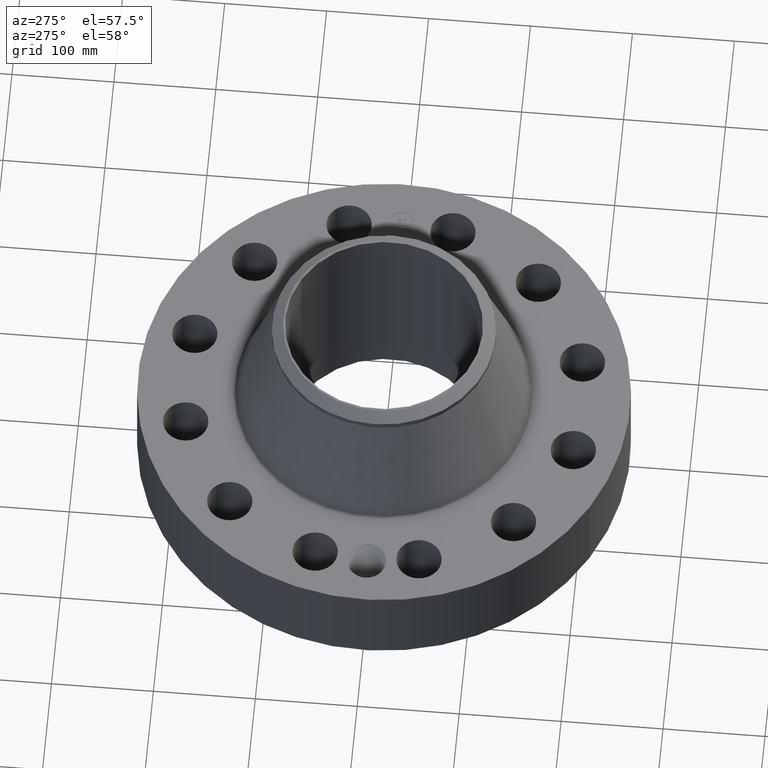
[diagram: clean part render]
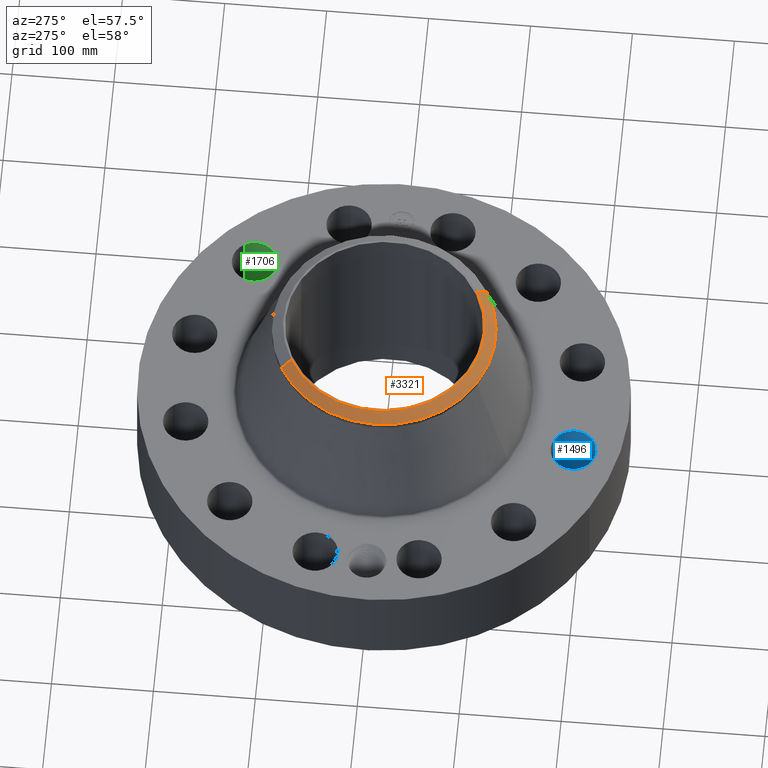
[diagram: same view with three faces highlighted in distinct colors, each labeled with its STEP entity id]
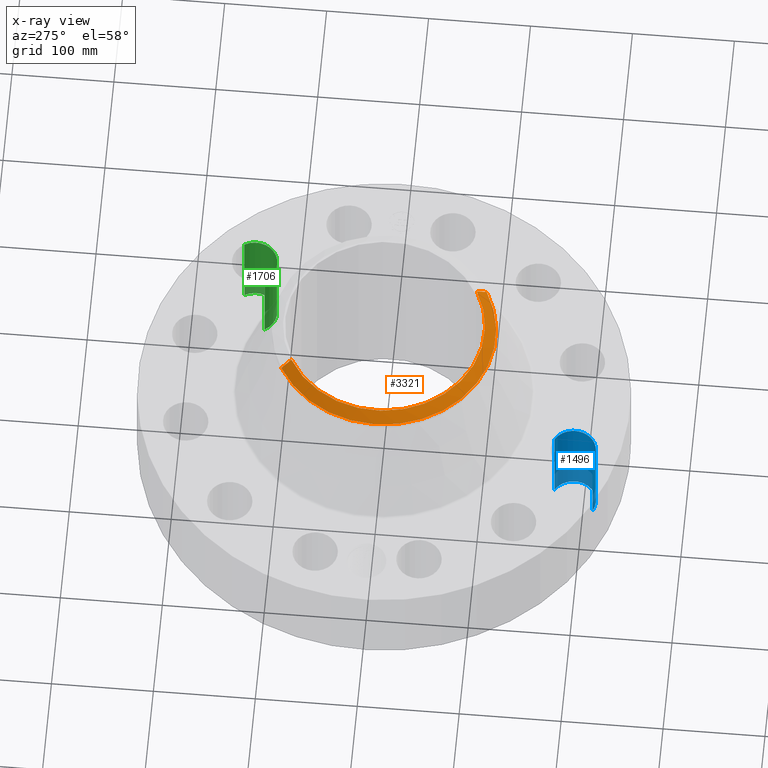
[diagram: x-ray of the same camera — body ghosted, the three highlighted faces saturated]
A machine part, auxiliary view with three faces highlighted in distinct colors.
The next image is the same camera in x-ray (body ghosted, the three faces saturated) — at least one of them is partly hidden behind the body in this view.
Their STEP definitions:

[orange] entity #3321 — the highlighted conical surface has half-angle 52.5 deg.
#2493=AXIS2_PLACEMENT_3D('Circle Axis2P3D',#2491,#2492,$) ;
#3286=AXIS2_PLACEMENT_3D('Cone Axis2P3D',#3283,#3284,#3285) ;
#3304=AXIS2_PLACEMENT_3D('Circle Axis2P3D',#3302,#3303,$) ;
#3311=AXIS2_PLACEMENT_3D('Circle Axis2P3D',#3309,#3310,$) ;
#2486=CARTESIAN_POINT('Vertex',(1.86555990835,-3.41488450635,8.63000000003)) ;
#2488=CARTESIAN_POINT('Vertex',(-1.86555990835,3.41488450635,8.63000000003)) ;
#2491=CARTESIAN_POINT('Axis2P3D Location',(0.,0.,8.63000000003)) ;
#3283=CARTESIAN_POINT('Axis2P3D Location',(0.,0.,8.63000000003)) ;
#3288=CARTESIAN_POINT('Line Origine',(1.96714055372,-3.60082663046,8.46741881824)) ;
#3292=CARTESIAN_POINT('Vertex',(2.06872119909,-3.78676875457,8.30483763645)) ;
#3295=CARTESIAN_POINT('Line Origine',(-1.96714055372,3.60082663046,8.46741881824)) ;
#3299=CARTESIAN_POINT('Vertex',(-2.06872119909,3.78676875457,8.30483763645)) ;
#3302=CARTESIAN_POINT('Axis2P3D Location',(0.,0.,8.30483763645)) ;
#3306=CARTESIAN_POINT('Vertex',(-2.06872119909,-3.78676875457,8.30483763645)) ;
#3309=CARTESIAN_POINT('Axis2P3D Location',(0.,0.,8.30483763645)) ;
#2492=DIRECTION('Axis2P3D Direction',(0.,0.,-0.0393700787402)) ;
#3284=DIRECTION('Axis2P3D Direction',(-0.,-0.,-0.0393700787402)) ;
#3285=DIRECTION('Axis2P3D XDirection',(-0.0188750212049,0.0345504945626,0.)) ;
#3289=DIRECTION('Vector Direction',(0.014974561121,-0.02741075027,-0.023966985394)) ;
#3296=DIRECTION('Vector Direction',(-0.014974561121,0.02741075027,-0.023966985394)) ;
#3303=DIRECTION('Axis2P3D Direction',(0.,0.,-0.0393700787402)) ;
#3310=DIRECTION('Axis2P3D Direction',(0.,0.,-0.0393700787402)) ;
#3290=VECTOR('Line Direction',#3289,0.0393700787402) ;
#3297=VECTOR('Line Direction',#3296,0.0393700787402) ;
#3315=ORIENTED_EDGE('',*,*,#3294,.F.) ;
#3316=ORIENTED_EDGE('',*,*,#2495,.F.) ;
#3317=ORIENTED_EDGE('',*,*,#3301,.T.) ;
#3318=ORIENTED_EDGE('',*,*,#3308,.T.) ;
#3319=ORIENTED_EDGE('',*,*,#3313,.F.) ;
#3321=ADVANCED_FACE('PartBody',(#3320),#3287,.T.) ;
#2494=CIRCLE('generated circle',#2493,3.8912401575) ;
#3305=CIRCLE('generated circle',#3304,4.31500000002) ;
#3312=CIRCLE('generated circle',#3311,4.31500000002) ;
#3287=CONICAL_SURFACE('Cone',#3286,3.8912401575,0.916297857297) ;
#2495=EDGE_CURVE('',#2489,#2487,#2494,.F.) ;
#3294=EDGE_CURVE('',#2487,#3293,#3291,.T.) ;
#3301=EDGE_CURVE('',#2489,#3300,#3298,.T.) ;
#3308=EDGE_CURVE('',#3300,#3307,#3305,.F.) ;
#3313=EDGE_CURVE('',#3293,#3307,#3312,.T.) ;
#3314=EDGE_LOOP('',(#3315,#3316,#3317,#3318,#3319)) ;
#3320=FACE_OUTER_BOUND('',#3314,.T.) ;
#3291=LINE('Line',#3288,#3290) ;
#3298=LINE('Line',#3295,#3297) ;
#2487=VERTEX_POINT('',#2486) ;
#2489=VERTEX_POINT('',#2488) ;
#3293=VERTEX_POINT('',#3292) ;
#3300=VERTEX_POINT('',#3299) ;
#3307=VERTEX_POINT('',#3306) ;

[blue] entity #1496 — the highlighted cylindrical surface (edge-blend (fillet) strip) has radius 22.225 mm, axis along (0, -0, -1).
#316=AXIS2_PLACEMENT_3D('Circle Axis2P3D',#314,#315,$) ;
#726=AXIS2_PLACEMENT_3D('Circle Axis2P3D',#724,#725,$) ;
#1478=AXIS2_PLACEMENT_3D('Cylinder Axis2P3D',#1475,#1476,#1477) ;
#314=CARTESIAN_POINT('Axis2P3D Location',(-2.00584759955,-7.48592515377,0.250000000001)) ;
#318=CARTESIAN_POINT('Vertex',(-1.58635025327,-6.71804041211,0.250000000001)) ;
#320=CARTESIAN_POINT('Vertex',(-2.42534494583,-8.25380989543,0.250000000001)) ;
#719=CARTESIAN_POINT('Vertex',(-2.42534494583,-8.25380989543,3.87000000002)) ;
#721=CARTESIAN_POINT('Vertex',(-1.58635025327,-6.71804041211,3.87000000002)) ;
#724=CARTESIAN_POINT('Axis2P3D Location',(-2.00584759955,-7.48592515377,3.87000000002)) ;
#1475=CARTESIAN_POINT('Axis2P3D Location',(-2.00584759955,-7.48592515377,3.86606299214)) ;
#1480=CARTESIAN_POINT('Line Origine',(-1.58635025327,-6.71804041211,2.06000000001)) ;
#1485=CARTESIAN_POINT('Line Origine',(-2.42534494583,-8.25380989543,2.06000000001)) ;
#315=DIRECTION('Axis2P3D Direction',(0.,0.,-0.0393700787402)) ;
#725=DIRECTION('Axis2P3D Direction',(0.,0.,-0.0393700787402)) ;
#1476=DIRECTION('Axis2P3D Direction',(0.,-0.,-0.0393700787402)) ;
#1477=DIRECTION('Axis2P3D XDirection',(-0.0188750212049,-0.0345504945626,0.)) ;
#1481=DIRECTION('Vector Direction',(0.,0.,-0.0393700787402)) ;
#1486=DIRECTION('Vector Direction',(0.,0.,-0.0393700787402)) ;
#1482=VECTOR('Line Direction',#1481,0.0393700787402) ;
#1487=VECTOR('Line Direction',#1486,0.0393700787402) ;
#1491=ORIENTED_EDGE('',*,*,#1484,.F.) ;
#1492=ORIENTED_EDGE('',*,*,#322,.T.) ;
#1493=ORIENTED_EDGE('',*,*,#1489,.T.) ;
#1494=ORIENTED_EDGE('',*,*,#728,.F.) ;
#1496=ADVANCED_FACE('PartBody',(#1495),#1479,.F.) ;
#317=CIRCLE('generated circle',#316,0.875000000003) ;
#727=CIRCLE('generated circle',#726,0.875000000003) ;
#1479=CYLINDRICAL_SURFACE('generated cylinder',#1478,0.875000000003) ;
#322=EDGE_CURVE('',#319,#321,#317,.T.) ;
#728=EDGE_CURVE('',#722,#720,#727,.T.) ;
#1484=EDGE_CURVE('',#319,#722,#1483,.F.) ;
#1489=EDGE_CURVE('',#321,#720,#1488,.F.) ;
#1490=EDGE_LOOP('',(#1491,#1492,#1493,#1494)) ;
#1495=FACE_OUTER_BOUND('',#1490,.T.) ;
#1483=LINE('Line',#1480,#1482) ;
#1488=LINE('Line',#1485,#1487) ;
#319=VERTEX_POINT('',#318) ;
#321=VERTEX_POINT('',#320) ;
#720=VERTEX_POINT('',#719) ;
#722=VERTEX_POINT('',#721) ;

[green] entity #1706 — the highlighted cylindrical surface (edge-blend (fillet) strip) has radius 22.225 mm, axis along (0, 0, -1).
#451=AXIS2_PLACEMENT_3D('Circle Axis2P3D',#449,#450,$) ;
#843=AXIS2_PLACEMENT_3D('Circle Axis2P3D',#841,#842,$) ;
#1681=AXIS2_PLACEMENT_3D('Cylinder Axis2P3D',#1678,#1679,#1680) ;
#444=CARTESIAN_POINT('Vertex',(4.73283982469,5.0248185339,0.250000000001)) ;
#446=CARTESIAN_POINT('Vertex',(6.22731528375,5.93533657453,0.250000000001)) ;
#449=CARTESIAN_POINT('Axis2P3D Location',(5.48007755422,5.48007755422,0.250000000001)) ;
#841=CARTESIAN_POINT('Axis2P3D Location',(5.48007755422,5.48007755422,3.87000000002)) ;
#845=CARTESIAN_POINT('Vertex',(6.22731528375,5.93533657453,3.87000000002)) ;
#847=CARTESIAN_POINT('Vertex',(4.73283982469,5.0248185339,3.87000000002)) ;
#1678=CARTESIAN_POINT('Axis2P3D Location',(5.48007755422,5.48007755422,3.86606299214)) ;
#1683=CARTESIAN_POINT('Line Origine',(4.73283982469,5.0248185339,2.06000000001)) ;
#1688=CARTESIAN_POINT('Line Origine',(6.22731528375,5.93533657453,2.06000000001)) ;
#450=DIRECTION('Axis2P3D Direction',(0.,0.,-0.0393700787402)) ;
#842=DIRECTION('Axis2P3D Direction',(0.,0.,-0.0393700787402)) ;
#1679=DIRECTION('Axis2P3D Direction',(0.,0.,-0.0393700787402)) ;
#1680=DIRECTION('Axis2P3D XDirection',(0.0336214951417,0.0204840954021,0.)) ;
#1684=DIRECTION('Vector Direction',(0.,0.,-0.0393700787402)) ;
#1689=DIRECTION('Vector Direction',(0.,0.,-0.0393700787402)) ;
#1685=VECTOR('Line Direction',#1684,0.0393700787402) ;
#1690=VECTOR('Line Direction',#1689,0.0393700787402) ;
#1701=ORIENTED_EDGE('',*,*,#1692,.F.) ;
#1702=ORIENTED_EDGE('',*,*,#453,.T.) ;
#1703=ORIENTED_EDGE('',*,*,#1687,.T.) ;
#1704=ORIENTED_EDGE('',*,*,#849,.F.) ;
#1706=ADVANCED_FACE('PartBody',(#1705),#1682,.F.) ;
#452=CIRCLE('generated circle',#451,0.875000000003) ;
#844=CIRCLE('generated circle',#843,0.875000000003) ;
#1682=CYLINDRICAL_SURFACE('generated cylinder',#1681,0.875000000003) ;
#453=EDGE_CURVE('',#447,#445,#452,.T.) ;
#849=EDGE_CURVE('',#846,#848,#844,.T.) ;
#1687=EDGE_CURVE('',#445,#848,#1686,.F.) ;
#1692=EDGE_CURVE('',#447,#846,#1691,.F.) ;
#1700=EDGE_LOOP('',(#1701,#1702,#1703,#1704)) ;
#1705=FACE_OUTER_BOUND('',#1700,.T.) ;
#1686=LINE('Line',#1683,#1685) ;
#1691=LINE('Line',#1688,#1690) ;
#445=VERTEX_POINT('',#444) ;
#447=VERTEX_POINT('',#446) ;
#846=VERTEX_POINT('',#845) ;
#848=VERTEX_POINT('',#847) ;